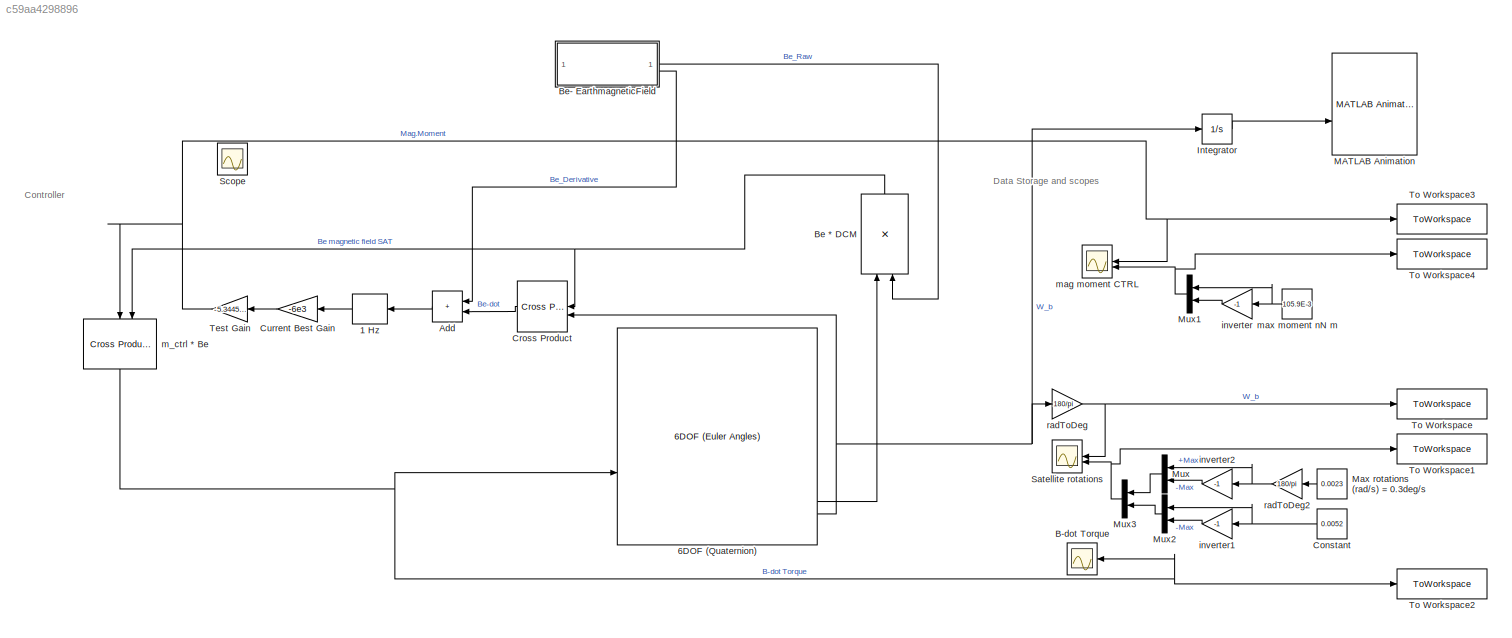
MODEL slx_c59aa4298896
KIND model
CONFIG AbsTol = auto
CONFIG EnableMultiTasking = off
CONFIG FixedStep = 1
CONFIG MaxStep = 100
CONFIG MinStep = auto
CONFIG RelTol = 1e-3
CONFIG SampleTimeConstraint = Unconstrained
CONFIG SolverName = VariableStepAuto
CONFIG StartTime = 0.0
CONFIG StopTime = 2.647E4
WORKSPACE source: mxarray member
WORKSPACE Inertia = [0.0088 0 0 0 0.0088 0 0 0 0.004]
WORKSPACE InitialAngVeloc = 5.7735
WORKSPACE M = 0.9
WORKSPACE T = 5580
BLOCK [ZeroOrderHold] 1 Hz
  NameLocation = top
BLOCK [Reference] 6DOF (Quaternion)  REF=shared6dof/6DOF (Euler Angles)
  LibrarySourceBlock = aerolib6dof2/6DOF (Quaternion)
  SourceBlock = shared6dof/6DOF (Euler Angles)
  SourceType = 6DOF EoM (Body Axis)
BLOCK [Sum] Add
  IconShape = rectangular
  NameLocation = top
BLOCK [Scope] B-dot Torque
  Floating = off
  NameLocation = top
  NumInputPorts = 1
  ScopeSpecificationString = Simulink.scopes.TimeScopeBlockCfg('CurrentConfiguration', extmgr.ConfigurationSet(extmgr.Configuration('Core','General UI',true),extmgr.Configuration('Core','Source UI',true),extmgr.Configuration('Sources','WiredSimulink',true,'DataLoggingVariableName','ScopeData1'),extmgr.Configuration('Visuals','Time Domain',true,'SerializedDisplays',{struct('MinYLimReal','-0.000001','MaxYLimReal','0.0000008','Y...<+1446ch>
BLOCK [Product] Be * DCM
  Multiplication = Matrix(*)
  NameLocation = left
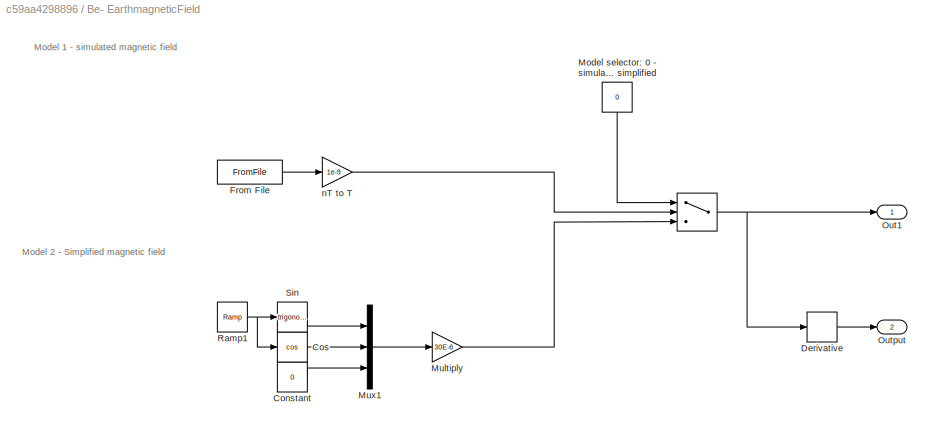
BLOCK [SubSystem] Be- EarthmagneticField
BLOCK [MultiPortSwitch] Be- EarthmagneticField/ 
  DataPortOrder = Zero-based contiguous
  InputSameDT = off
  Inputs = 2
  OutMax = [26470]
  OutMin = [0]
  SaturateOnIntegerOverflow = off
  zeroidx = on
BLOCK [Constant] Be- EarthmagneticField/Constant
  Value = 0
BLOCK [Trigonometry] Be- EarthmagneticField/Cos
  Operator = cos
BLOCK [Derivative] Be- EarthmagneticField/Derivative
BLOCK [FromFile] Be- EarthmagneticField/From File
  FileName = MagFieldData.mat
  SampleTime = 0
BLOCK [Constant] Be- EarthmagneticField/Model selector: 0 - simulated 1 - simplified 
  NameLocation = left
  Value = 0
BLOCK [Gain] Be- EarthmagneticField/Multiply
  Gain = 30E-6
BLOCK [Mux] Be- EarthmagneticField/Mux1
  DisplayOption = bar
  Inputs = 3
BLOCK [Outport] Be- EarthmagneticField/Out1
BLOCK [Outport] Be- EarthmagneticField/Output
  Port = 2
BLOCK [Reference] Be- EarthmagneticField/Ramp1  REF=simulink/Sources/Ramp
  SourceBlock = simulink/Sources/Ramp
  SourceType = Ramp
BLOCK [Trigonometry] Be- EarthmagneticField/Sin
BLOCK [Gain] Be- EarthmagneticField/nT to T
  Gain = 1e-9
BLOCK [Constant] Constant
  NameLocation = top
  Value = 0.0052
BLOCK [Reference] Cross Product  REF=matrix_library/Cross Product
  LibrarySourceBlock = simulink/Matrix\nOperations/Cross Product
  SourceBlock = matrix_library/Cross Product
  SourceType = CrossProduct
BLOCK [Gain] Current Best Gain
  Gain = -6e3
  Multiplication = Matrix(K*u)
BLOCK [Integrator] Integrator
BLOCK [Reference] MATLAB Animation  REF=aerolibanim/MATLAB
Animation
  Commented = on
  SourceBlock = aerolibanim/MATLAB\nAnimation
  SourceType = AeroMATLABAnimation
  Tag = Matlab Animation 6 DOF
BLOCK [Constant] Max rotations (rad//s) = 0.3deg//s
  NameLocation = top
  Value = 0.0023
BLOCK [Mux] Mux
  DisplayOption = bar
  Inputs = 2
  NameLocation = top
BLOCK [Mux] Mux1
  DisplayOption = bar
  Inputs = 2
  NameLocation = top
BLOCK [Mux] Mux2
  DisplayOption = bar
  Inputs = 2
  NameLocation = top
BLOCK [Mux] Mux3
  DisplayOption = bar
  Inputs = 2
  NameLocation = top
BLOCK [Scope] Satellite rotations
  Floating = off
  NameLocation = top
  NumInputPorts = 2
  ScopeSpecificationString = Simulink.scopes.TimeScopeBlockCfg('CurrentConfiguration', extmgr.ConfigurationSet(extmgr.Configuration('Core','General UI',true),extmgr.Configuration('Core','Source UI',true),extmgr.Configuration('Sources','WiredSimulink',true),extmgr.Configuration('Visuals','Time Domain',true,'SerializedDisplays',{struct('MinYLimReal','-0.303','MaxYLimReal','0.3064','YLabelReal','','MinYLimMag','0.00000','MaxYLim...<+1917ch>
BLOCK [Scope] Scope
  Floating = off
  IOType = viewer
  NumInputPorts = 1
  ScopeSpecificationString = Simulink.scopes.TimeScopeBlockCfg('CurrentConfiguration', extmgr.ConfigurationSet(extmgr.Configuration('Core','General UI',true),extmgr.Configuration('Core','Source UI',true),extmgr.Configuration('Sources','WiredSimulink',true,'DataLoggingVariableName','ScopeData1'),extmgr.Configuration('Visuals','Time Domain',true),extmgr.Configuration('Tools','Plot Navigation',true),extmgr.Configuration('Tools',...<+87ch>
BLOCK [Gain] Test Gain
  Commented = through
  Gain = -5.3445e3
BLOCK [ToWorkspace] To Workspace
  FixptAsFi = on
  MaxDataPoints = inf
  SampleTime = -1
  SaveFormat = Timeseries
  VariableName = DataBDotSatRot
BLOCK [ToWorkspace] To Workspace1
  FixptAsFi = on
  MaxDataPoints = inf
  SampleTime = -1
  SaveFormat = Timeseries
  VariableName = MinMaxBdotSatRot
BLOCK [ToWorkspace] To Workspace2
  FixptAsFi = on
  MaxDataPoints = inf
  SampleTime = -1
  SaveFormat = Timeseries
  VariableName = DataBdotTorque
BLOCK [ToWorkspace] To Workspace3
  FixptAsFi = on
  MaxDataPoints = inf
  SampleTime = -1
  SaveFormat = Timeseries
  VariableName = DataBdotMoment
BLOCK [ToWorkspace] To Workspace4
  FixptAsFi = on
  MaxDataPoints = inf
  SampleTime = -1
  SaveFormat = Timeseries
  VariableName = MinMaxBdotMoment
BLOCK [Gain] inverter
  Gain = -1
BLOCK [Gain] inverter1
  Gain = -1
BLOCK [Gain] inverter2
  Gain = -1
  NameLocation = top
BLOCK [Reference] m_ctrl * Be  REF=matrix_library/Cross Product
  LibrarySourceBlock = simulink/Matrix\nOperations/Cross Product
  NameLocation = right
  SourceBlock = matrix_library/Cross Product
  SourceType = CrossProduct
BLOCK [Scope] mag moment CTRL
  Floating = off
  NameLocation = top
  NumInputPorts = 2
  ScopeSpecificationString = Simulink.scopes.TimeScopeBlockCfg('CurrentConfiguration', extmgr.ConfigurationSet(extmgr.Configuration('Core','General UI',true),extmgr.Configuration('Core','Source UI',true),extmgr.Configuration('Sources','WiredSimulink',true,'DataLoggingVariableName','ScopeData2'),extmgr.Configuration('Visuals','Time Domain',true,'SerializedDisplays',{struct('MinYLimReal','-0.13237','MaxYLimReal','0.13237','YLab...<+1451ch>
BLOCK [Constant] max moment nN m
  Value = 105.9E-3
BLOCK [Gain] radToDeg
  Commented = through
  Gain = 180/pi
  NameLocation = top
BLOCK [Gain] radToDeg2
  Commented = through
  Gain = 180/pi
ANNOTATION (root): Controller
ANNOTATION (root): Data Storage and scopes
ANNOTATION Be- EarthmagneticField: Model 1 - simulated magnetic field
ANNOTATION Be- EarthmagneticField: Model 2 - Simplified magnetic field
LINE 1 Hz:1 -> Current Best Gain:1
LINE 6DOF (Quaternion):4 -> Be * DCM:1
NET 6DOF (Quaternion):6 -> Cross Product:2, Integrator:1, radToDeg:1
LINE Add:1 -> 1 Hz:1
NET Be * DCM:1 -> Cross Product:1, m_ctrl * Be:2
NET Be- EarthmagneticField/ :1 -> Be- EarthmagneticField/Derivative:1, Be- EarthmagneticField/Out1:1
LINE Be- EarthmagneticField/Constant:1 -> Be- EarthmagneticField/Mux1:3
LINE Be- EarthmagneticField/Cos:1 -> Be- EarthmagneticField/Mux1:2
LINE Be- EarthmagneticField/Derivative:1 -> Be- EarthmagneticField/Output:1
LINE Be- EarthmagneticField/From File:1 -> Be- EarthmagneticField/nT to T:1
LINE Be- EarthmagneticField/Model selector: 0 - simulated 1 - simplified :1 -> Be- EarthmagneticField/ :1
LINE Be- EarthmagneticField/Multiply:1 -> Be- EarthmagneticField/ :3
LINE Be- EarthmagneticField/Mux1:1 -> Be- EarthmagneticField/Multiply:1
NET Be- EarthmagneticField/Ramp1:1 -> Be- EarthmagneticField/Cos:1, Be- EarthmagneticField/Sin:1
LINE Be- EarthmagneticField/Sin:1 -> Be- EarthmagneticField/Mux1:1
LINE Be- EarthmagneticField/nT to T:1 -> Be- EarthmagneticField/ :2
LINE Be- EarthmagneticField:1 -> Be * DCM:2
LINE Be- EarthmagneticField:2 -> Add:1
NET Constant:1 -> Mux2:1, inverter1:1
LINE Cross Product:1 -> Add:2
LINE Current Best Gain:1 -> Test Gain:1
LINE Integrator:1 -> MATLAB Animation:2
LINE Max rotations (rad//s) = 0.3deg//s:1 -> radToDeg2:1
NET Mux1:1 -> To Workspace4:1, mag moment CTRL:2
LINE Mux2:1 -> Mux3:2
NET Mux3:1 -> Satellite rotations:2, To Workspace1:1
LINE Mux:1 -> Mux3:1
NET Test Gain:1 -> To Workspace3:1, m_ctrl * Be:1, mag moment CTRL:1
LINE inverter1:1 -> Mux2:2
LINE inverter2:1 -> Mux:2
LINE inverter:1 -> Mux1:2
NET m_ctrl * Be:1 -> 6DOF (Quaternion):2, B-dot Torque:1, To Workspace2:1
NET max moment nN m:1 -> Mux1:1, inverter:1
NET radToDeg2:1 -> Mux:1, inverter2:1
NET radToDeg:1 -> Satellite rotations:1, To Workspace:1
note: NET lines group one-source signal fan-out (src -> all destinations, sorted); 1:1 wires keep LINE
